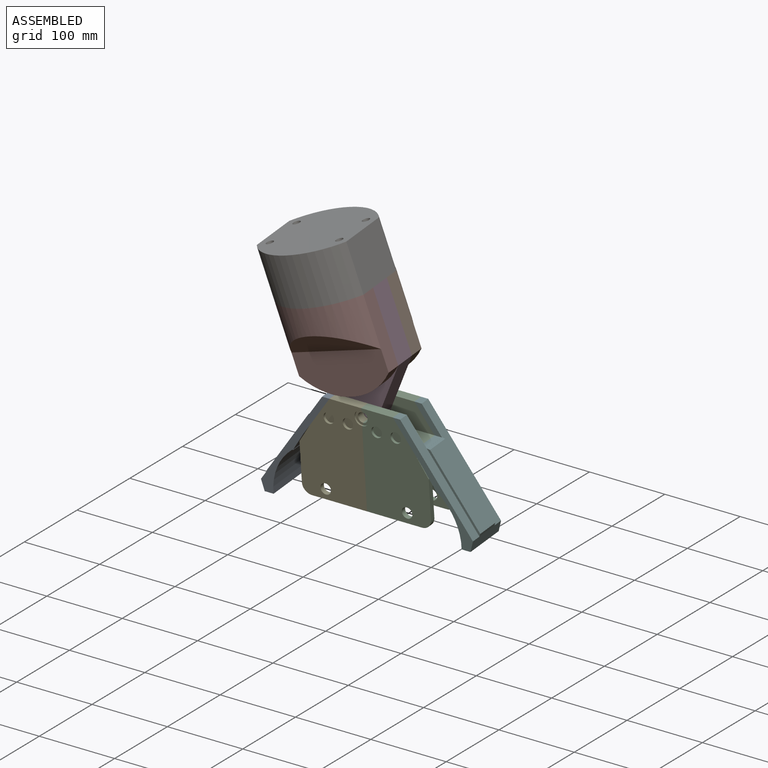
[diagram: assembled view]
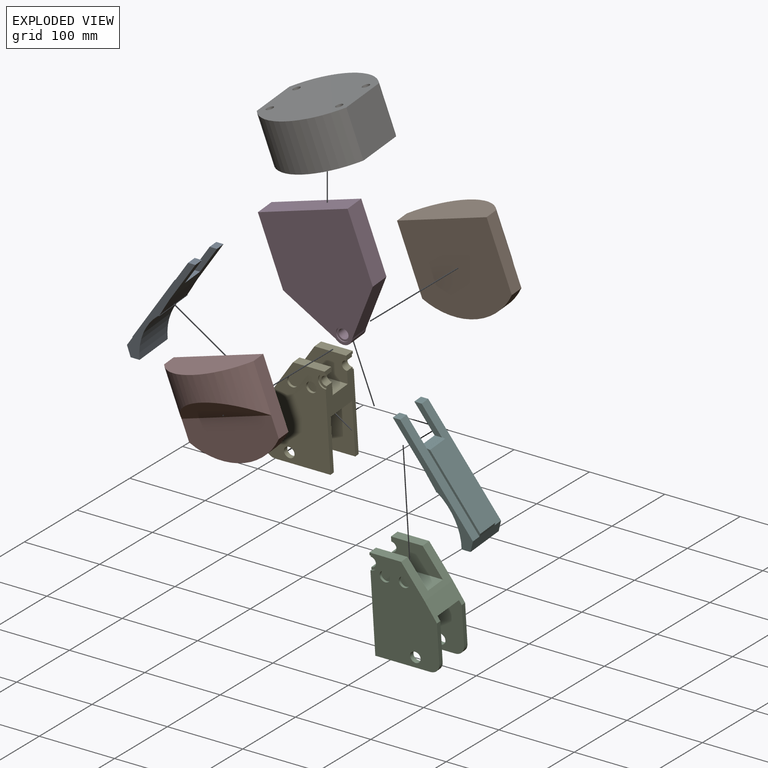
[diagram: exploded view]
GUIDED TOUR — MATED ASSEMBLY (Onshape document 93b1344b0edaf058a38d2f1a, AutoMate assembly 93b1344b0edaf058a38d2f1a_c62d3493fb06994a1e959979_1a160d0c319ed642daff932e_default)

This assembly has 8 components, labeled P0..P7 below (a component is one placed occurrence of a part; the same part can appear more than once), held together by 19 mates. A mate is a constraint between two components; its type names the relative motion it leaves free:
  CYLINDRICAL — leaves both rotation about and translation along the listed axis free,
  PLANAR — leaves sliding in the plane through the listed point (normal = the listed direction) and rotation about that normal free,
  SLIDER — leaves translation along the listed axis free.
Axis/direction vectors are unit vectors and 'through' points are millimeter coordinates, both in the assembly's world frame.

MATES
  1. PLANAR "Planar 11": P2 <-> P5, direction (0.000, -0.996, -0.087) through (231.27, 239.85, 90.16) mm
  2. PLANAR "Planar 17": P3 <-> P6, direction (0.954, -0.026, 0.297) through (219.45, 256.17, 195.93) mm
  3. PLANAR "Planar 5": P7 <-> P3, direction (0.954, -0.026, 0.297) through (224.94, 226.54, 175.72) mm
  4. PLANAR "Planar 12": P2 <-> P5, direction (0.000, -0.087, 0.996) through (210.24, 252.28, 91.25) mm
  5. PLANAR "Planar 7": P1 <-> P3, direction (0.000, -0.996, -0.087) through (161.71, 271.57, 169.05) mm
  6. PLANAR "Planar 2": P4 <-> P2, direction (0.000, -0.087, 0.996) through (189.22, 269.58, 57.39) mm
  7. PLANAR "Planar 13": P4 <-> P0, direction (-0.819, -0.050, 0.571) through (122.50, 255.35, 56.14) mm
  8. PLANAR "Planar 4": P3 <-> P7, direction (0.000, -0.996, -0.087) through (219.45, 243.22, 194.79) mm
  9. PLANAR "Planar 6": P7 <-> P3, direction (-0.299, -0.083, 0.951) through (144.86, 219.91, 218.61) mm
  10. PLANAR "Planar 1": P4 <-> P3, direction (0.000, 0.996, 0.087) through (160.69, 253.95, 72.15) mm
  11. CYLINDRICAL "Cylindrical 1": P4 <-> P3, axis (0.000, 0.996, 0.087) through (189.22, 242.95, 77.68) mm
  12. PLANAR "Planar 3": P4 <-> P2, direction (1.000, 0.000, 0.000) through (189.22, 271.77, 32.44) mm
  13. PLANAR "Planar 10": P2 <-> P5, direction (0.819, -0.050, 0.571) through (231.27, 239.85, 90.16) mm
  14. SLIDER "Slider 1": P4 <-> P2, axis (1.000, 0.000, 0.000) through (189.22, 239.85, 90.16) mm
  15. PLANAR "Planar 9": P3 <-> P1, direction (0.954, -0.026, 0.297) through (219.45, 256.17, 195.93) mm
  16. PLANAR "Planar 8": P3 <-> P1, direction (-0.299, -0.083, 0.951) through (144.76, 253.93, 221.56) mm
  17. PLANAR "Planar 14": P0 <-> P4, direction (0.000, -0.996, -0.087) through (91.94, 246.29, 16.50) mm
  18. PLANAR "Planar 15": P0 <-> P4, direction (0.000, -0.087, 0.996) through (142.31, 239.85, 90.16) mm
  19. PLANAR "Planar 16": P1 <-> P6, direction (-0.299, -0.083, 0.951) through (144.86, 287.94, 224.56) mm

ASSEMBLY ORDER
  1. P5 — the base component [order verified]
  2. P2 [order verified]
  3. P4 [order verified]
  4. P0 [order verified]
  5. P3 [order verified]
  6. P1 [order verified]
  7. P7 [order verified]
  8. P6 [order verified]
Order-tag legend:
  [order verified] — this step's position reverses a verified removal order: the component was checked to insert without passing through the ones already placed.

Of the 8 components, 2 carry the full construction recipe — the FeatureScript program that regenerates the part's solid from scratch; the rest are supplied as boundary geometry only.
Each toured component is shown spotlighted twice — in the assembled view, then in the exploded view, where a leader line traces a displaced component back to its assembled socket (saturated green if recipe-attached, orange if geometry-only; every other component desaturated gray) — followed by its recipe or geometry summary and the mates that hold it.
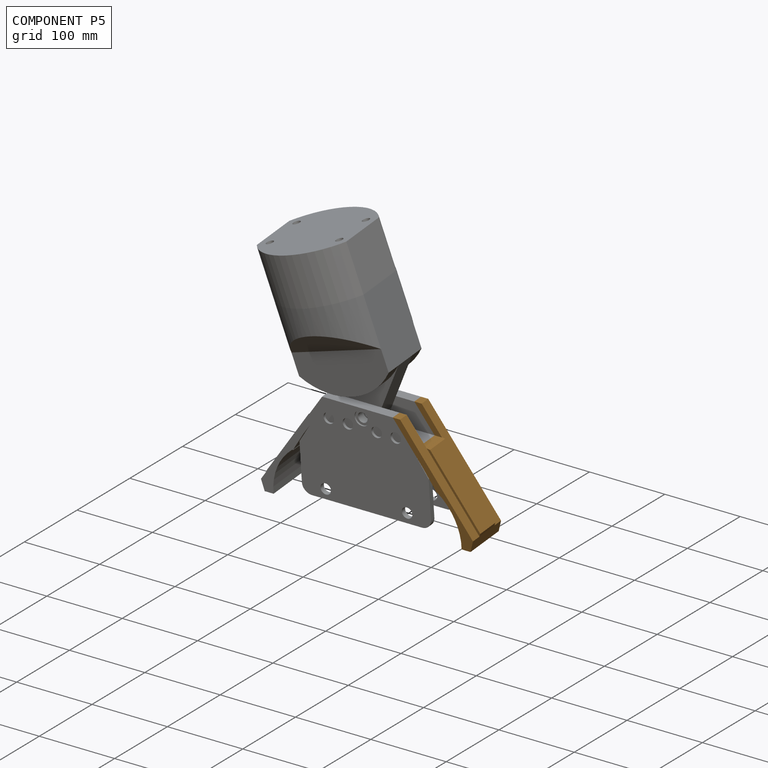
[diagram: component P5 — assembled]
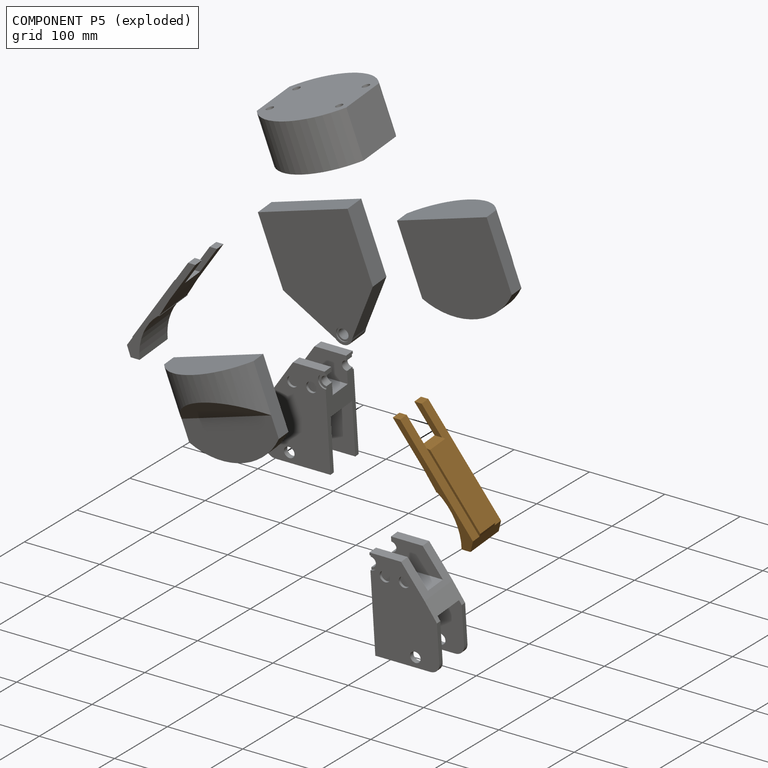
[diagram: component P5 — exploded]
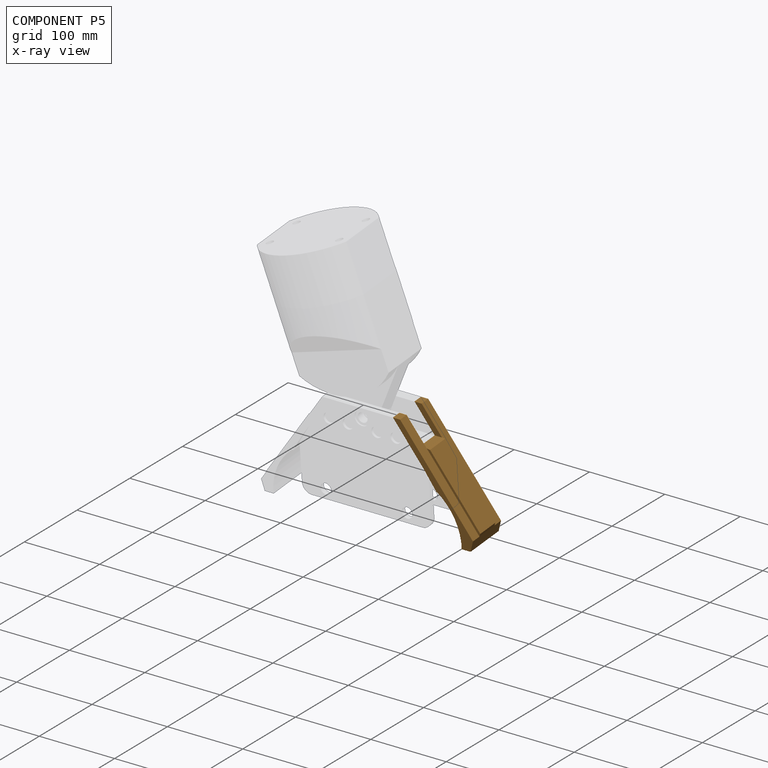
[diagram: component P5 — x-ray view]
COMPONENT P5 — geometry summary (no construction recipe available for this part):
  bounding box: 141.3 x 99.9 x 53.5 mm
  B-rep topology: 1 solid, 22 faces, 110 edges
  volume: 77191 mm^3 (10% of its bounding box)
  symmetry: mirror-symmetric across its y mid-plane
Held by: PLANAR mate "Planar 11" to P2; PLANAR mate "Planar 12" to P2; PLANAR mate "Planar 10" to P2.
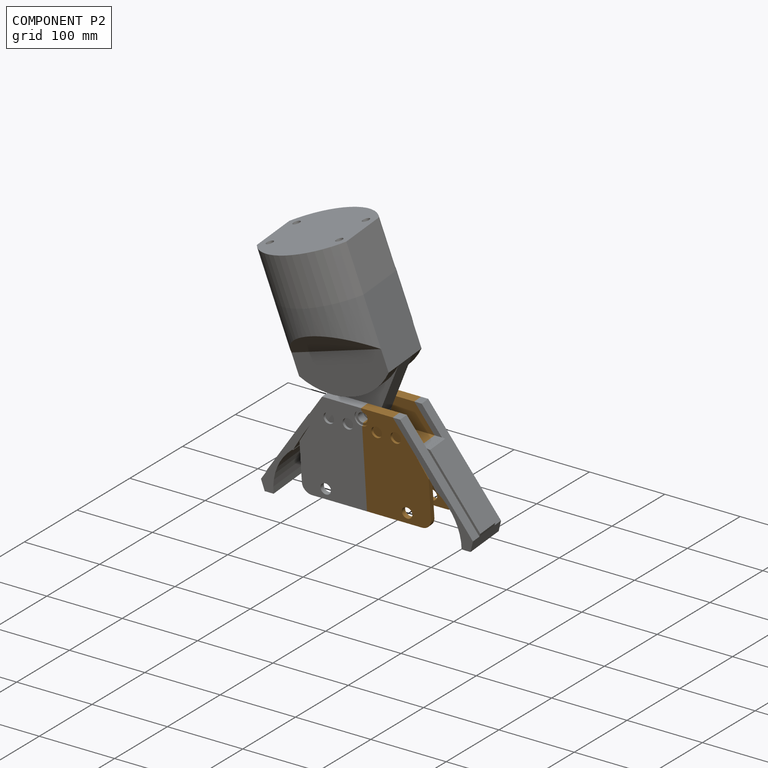
[diagram: component P2 — assembled]
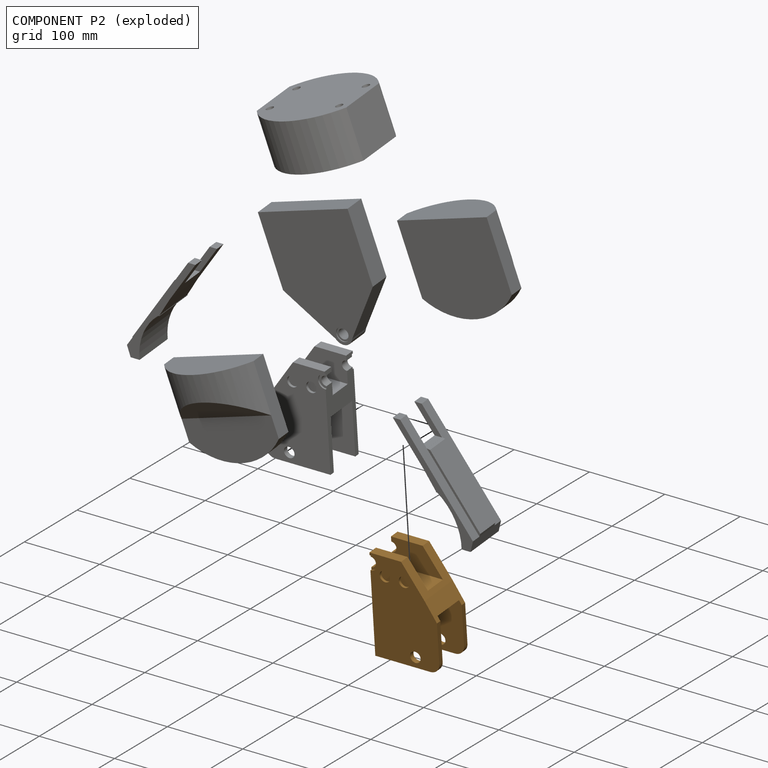
[diagram: component P2 — exploded]
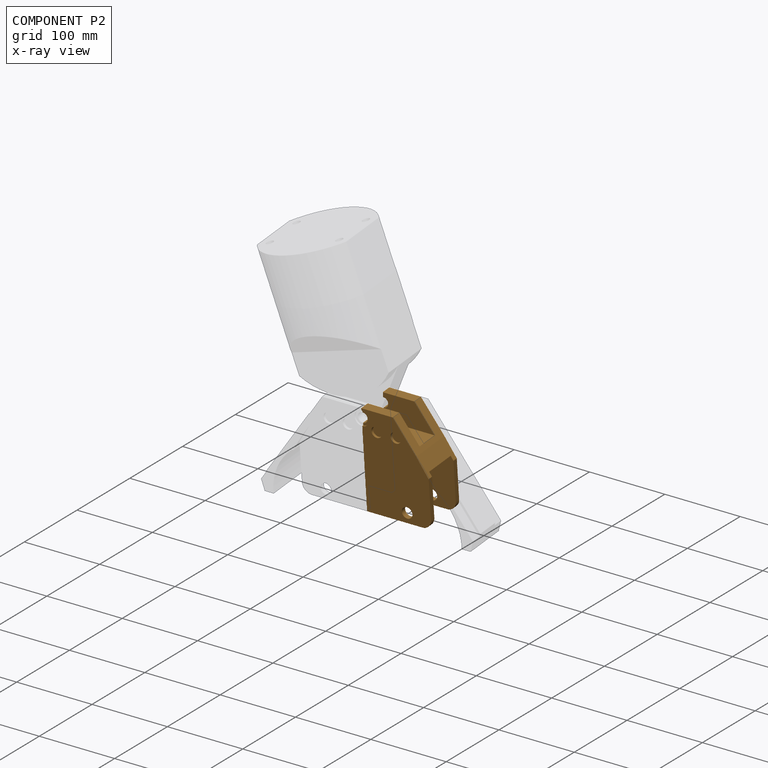
[diagram: component P2 — x-ray view]
COMPONENT P2 — geometry summary (no construction recipe available for this part):
  bounding box: 128.6 x 85.7 x 53.5 mm
  B-rep topology: 1 solid, 37 faces, 198 edges
  volume: 213178 mm^3 (36% of its bounding box)
  symmetry: mirror-symmetric across its y mid-plane
Held by: PLANAR mate "Planar 11" to P5; PLANAR mate "Planar 12" to P5; PLANAR mate "Planar 2" to P4; PLANAR mate "Planar 3" to P4; PLANAR mate "Planar 10" to P5; SLIDER mate "Slider 1" to P4.
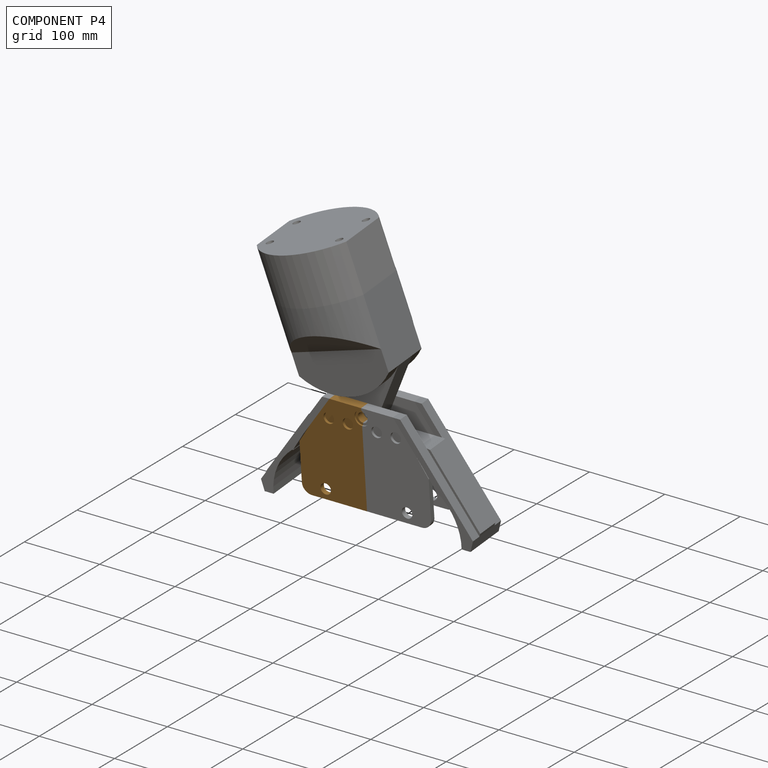
[diagram: component P4 — assembled]
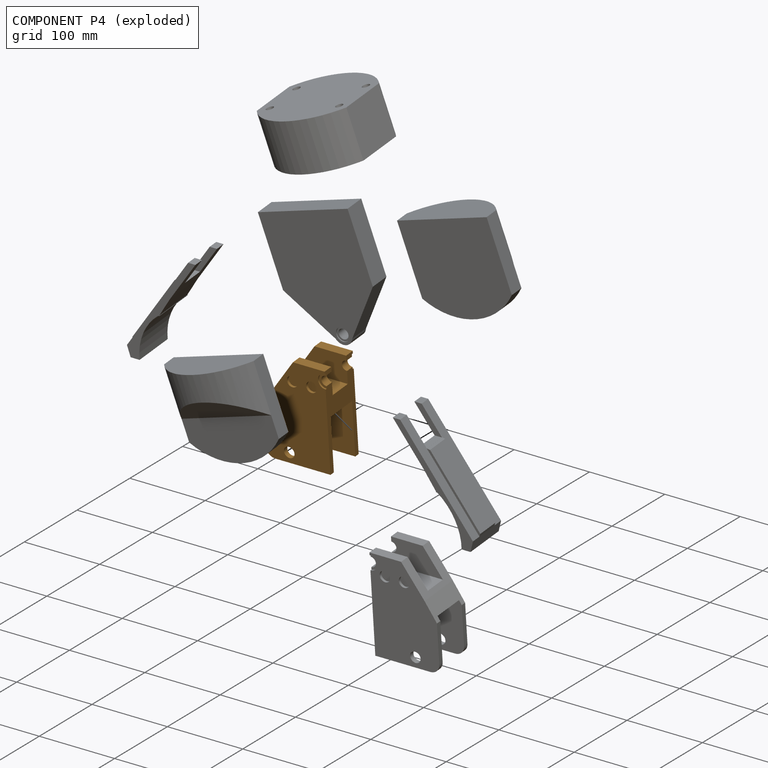
[diagram: component P4 — exploded]
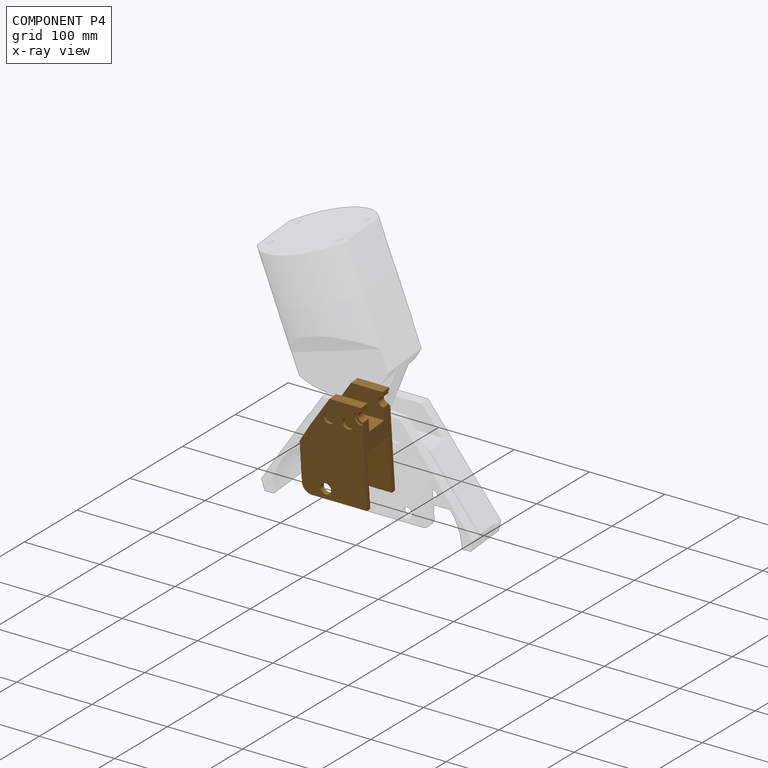
[diagram: component P4 — x-ray view]
COMPONENT P4 — geometry summary (no construction recipe available for this part):
  bounding box: 128.6 x 85.7 x 53.5 mm
  B-rep topology: 1 solid, 37 faces, 198 edges
  volume: 213178 mm^3 (36% of its bounding box)
  symmetry: mirror-symmetric across its y mid-plane
Held by: PLANAR mate "Planar 2" to P2; PLANAR mate "Planar 13" to P0; PLANAR mate "Planar 1" to P3; CYLINDRICAL mate "Cylindrical 1" to P3; PLANAR mate "Planar 3" to P2; SLIDER mate "Slider 1" to P2; PLANAR mate "Planar 14" to P0; PLANAR mate "Planar 15" to P0.
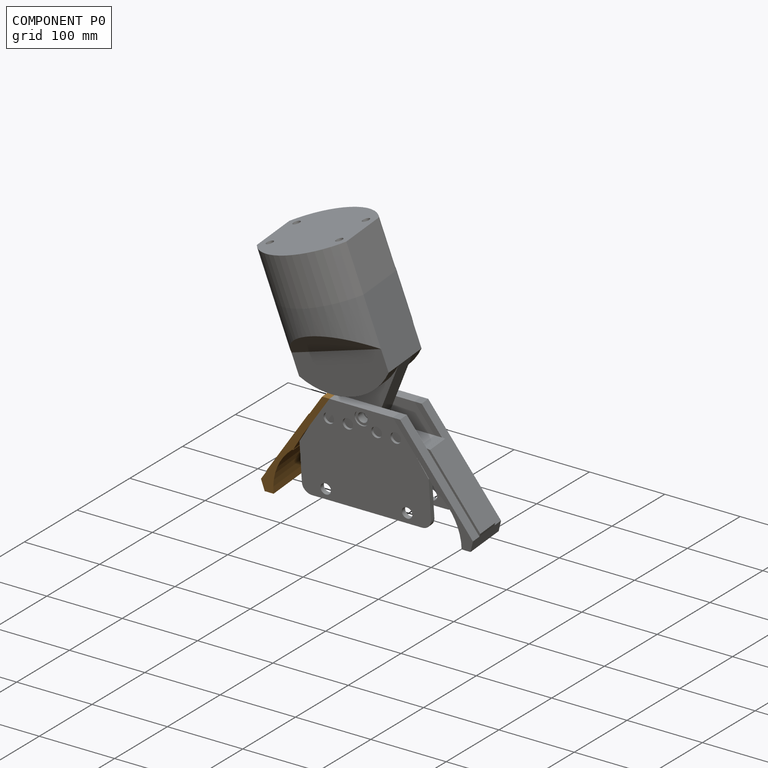
[diagram: component P0 — assembled]
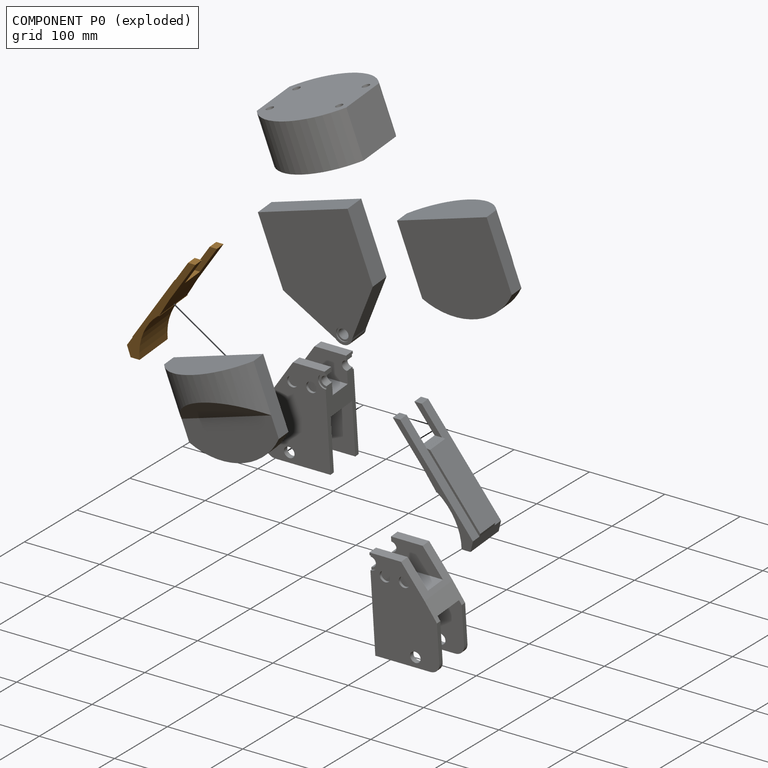
[diagram: component P0 — exploded]
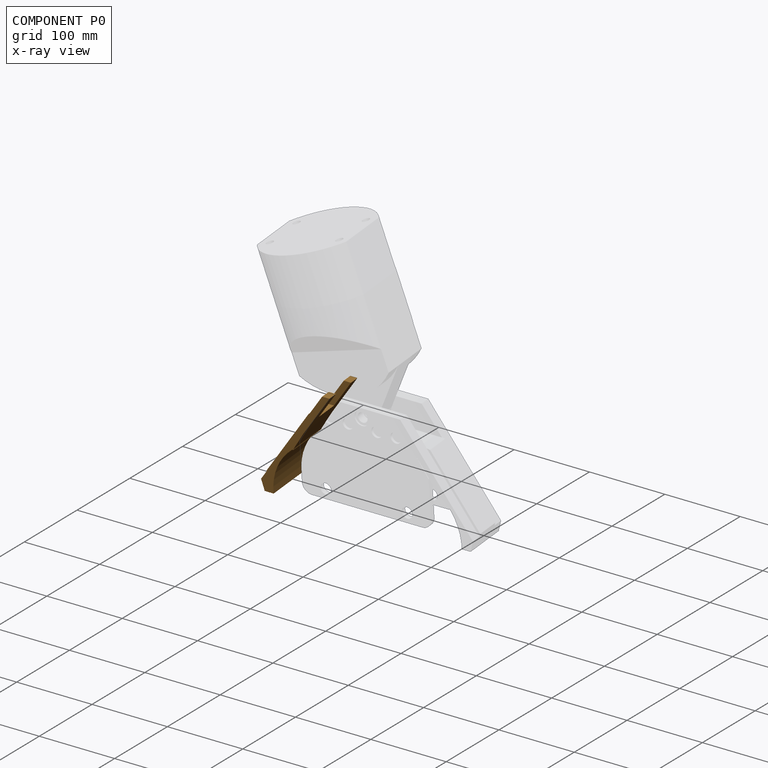
[diagram: component P0 — x-ray view]
COMPONENT P0 — geometry summary (no construction recipe available for this part):
  bounding box: 141.3 x 99.9 x 53.5 mm
  B-rep topology: 1 solid, 22 faces, 110 edges
  volume: 77191 mm^3 (10% of its bounding box)
  symmetry: mirror-symmetric across its y mid-plane
Held by: PLANAR mate "Planar 13" to P4; PLANAR mate "Planar 14" to P4; PLANAR mate "Planar 15" to P4.
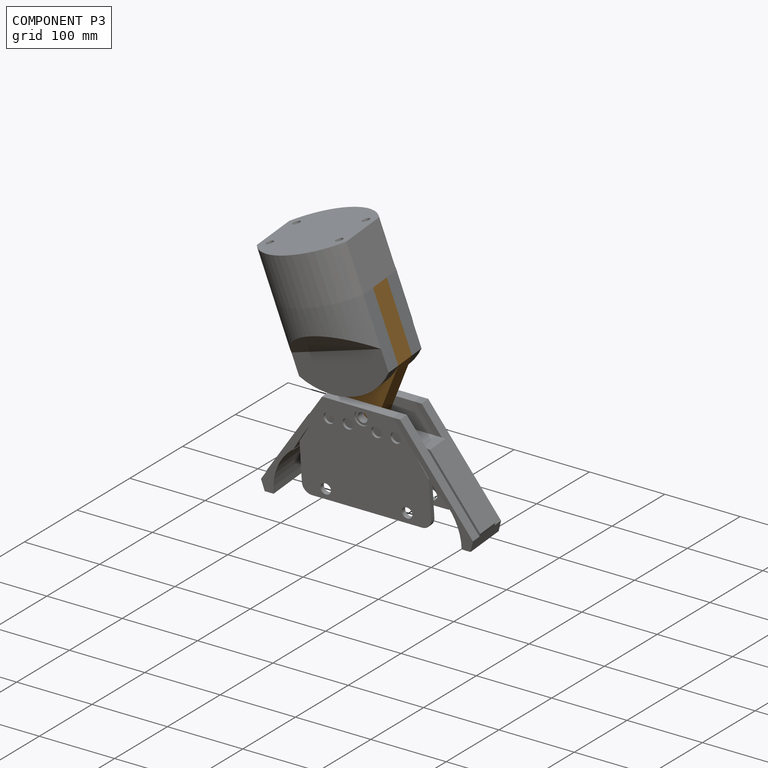
[diagram: component P3 — assembled]
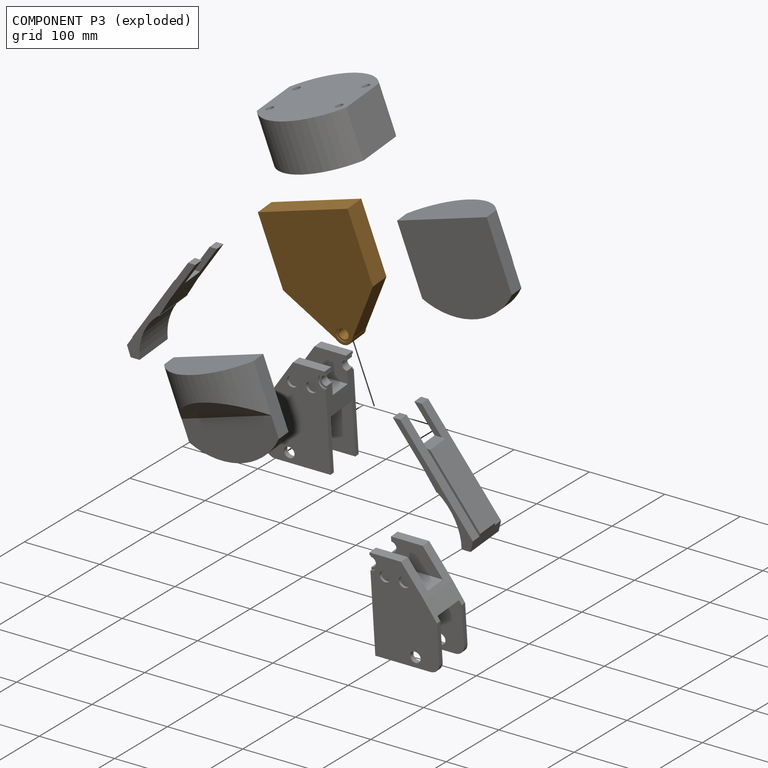
[diagram: component P3 — exploded]
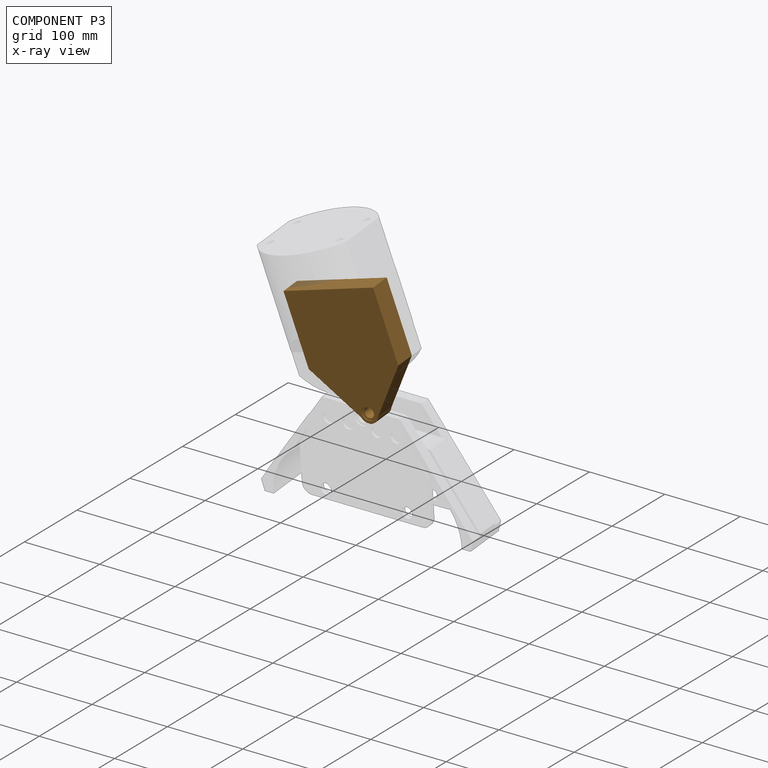
[diagram: component P3 — x-ray view]
COMPONENT P3 — geometry summary (no construction recipe available for this part):
  bounding box: 161.8 x 127.2 x 26.0 mm
  B-rep topology: 1 solid, 13 faces, 58 edges
  volume: 427445 mm^3 (80% of its bounding box)
  symmetry: 2-fold rotationally symmetric about the y axis; mirror-symmetric across its x mid-plane, z mid-plane
Held by: PLANAR mate "Planar 17" to P6; PLANAR mate "Planar 5" to P7; PLANAR mate "Planar 7" to P1; PLANAR mate "Planar 4" to P7; PLANAR mate "Planar 6" to P7; PLANAR mate "Planar 1" to P4; CYLINDRICAL mate "Cylindrical 1" to P4; PLANAR mate "Planar 9" to P1; PLANAR mate "Planar 8" to P1.
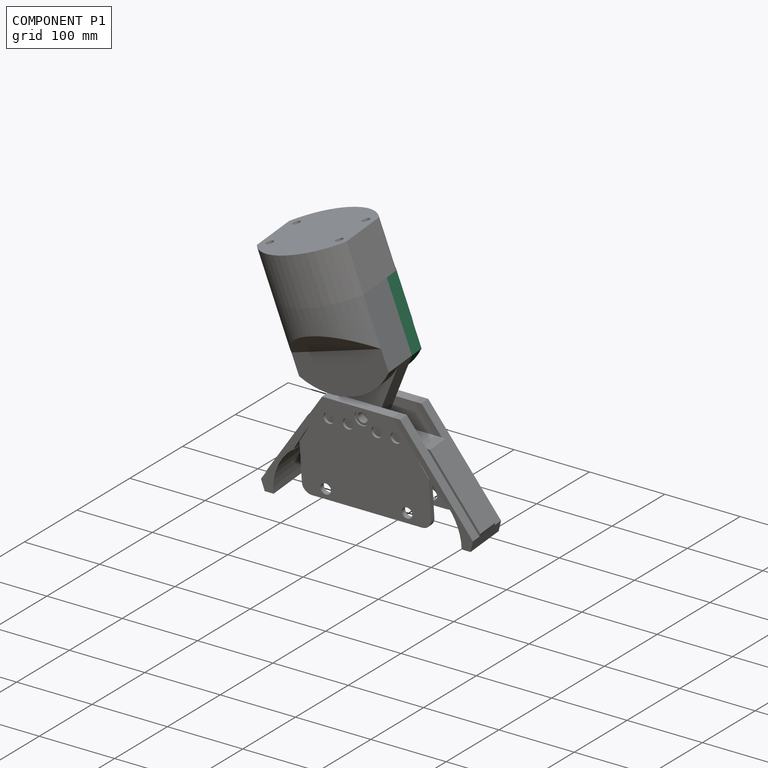
[diagram: component P1 — assembled]
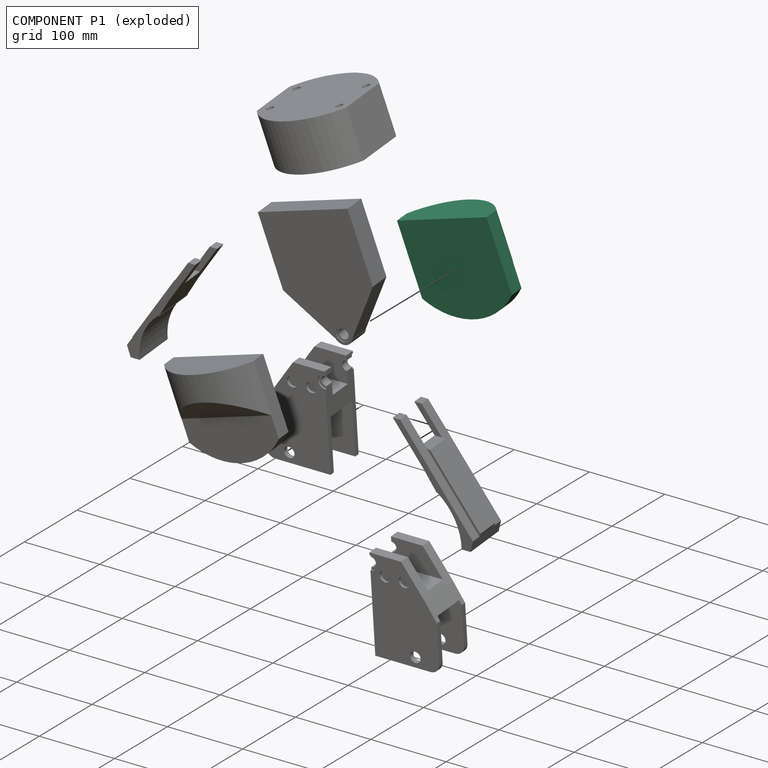
[diagram: component P1 — exploded]
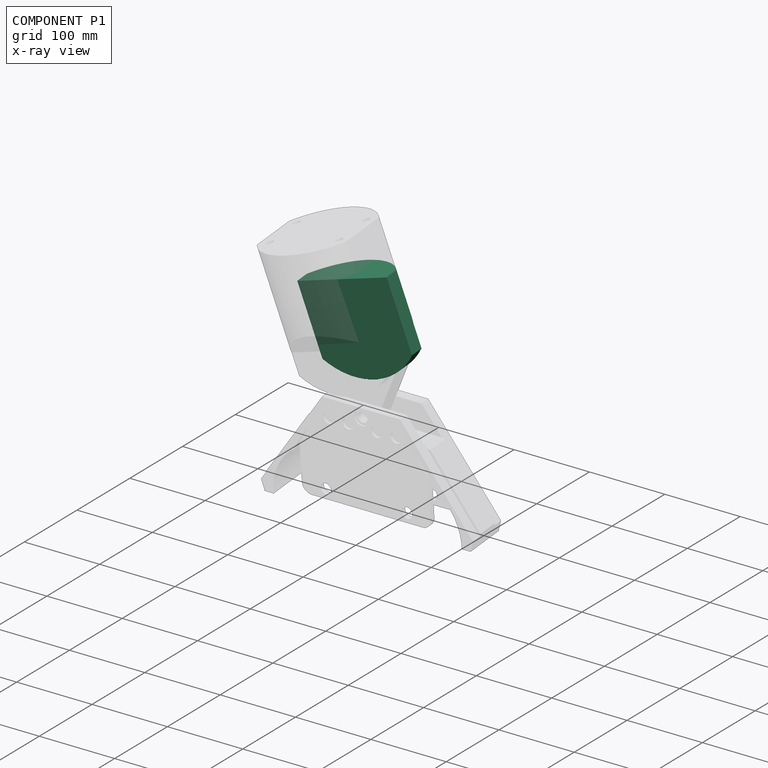
[diagram: component P1 — x-ray view]
COMPONENT P1 — recipe-attached (CADFS 00116820, mesh-verified: the recipe's output STEP matches this component's geometry to below the mesh-comparison resolution (tessellation chordal tolerance ~0.273 mm)).
Held by: PLANAR mate "Planar 7" to P3; PLANAR mate "Planar 9" to P3; PLANAR mate "Planar 8" to P3; PLANAR mate "Planar 16" to P6.
Construction recipe (FeatureScript — the CAD program that rebuilds this solid; sketch coordinates are in the units given by the * unit suffixes, e.g. mm):

FeatureScript 2221;
import(path : "onshape/std/geometry.fs", version : "2221.0");
import(path : "onshape/std/common.fs", version : "2221.0");
const mm = millimeter;
const VERTEX = EntityType.VERTEX;
const EDGE = EntityType.EDGE;
const FACE = EntityType.FACE;
const BODY = EntityType.BODY;
function v(x, y){return vector(x, y);}
function OD(order){return orderDisambiguation(order);}
function OSD(set){return originalSetDisambiguation(set);}
function TD(topology){return topologyDisambiguation(topology);}
function TDD(query){return trueDependencyDisambiguation(query);}
function sQuery(a, b, c) {return sketchEntityQuery(a, b, c);}

annotation { "Feature Type Name" : "Feature", "Feature Type Description" : "" }
export const myFeature = defineFeature(function(context is Context, id is Id, definition is map)
    precondition{}
    {
        {
            var Q0;
            Q0=qCreatedBy(makeId("Front.planeOp"),FACE);
            var sketch = newSketch(context, id + "F0", { "sketchPlane" : qUnion([Q0])});
            skLineSegment(sketch, "E0.bottom", {"start": v(-63.5, 31) * mm, "end": v(63.5, 31) * mm});
            skLineSegment(sketch, "E0.top", {"start": v(-63.5, -31) * mm, "end": v(63.5, -31) * mm});
            skLineSegment(sketch, "E0.left", {"start": v(-63.5, 31) * mm, "end": v(-63.5, -31) * mm});
            skLineSegment(sketch, "E0.right", {"start": v(63.5, 31) * mm, "end": v(63.5, -31) * mm});
            skPoint(sketch, "E0.middle", {"position": v(0, 0) * mm});
            skLineSegment(sketch, "E1", {"start": v(0, 0) * mm, "end": v(0, -62.5) * mm});
            skLineSegment(sketch, "E2", {"start": v(0, -62.5) * mm, "end": v(0, 0) * mm});
            skLineSegment(sketch, "E3", {"start": v(0, 0) * mm, "end": v(0, 62.5) * mm});
            skLineSegment(sketch, "E4", {"start": v(0, 62.5) * mm, "end": v(0, 0) * mm});
            skArc(sketch, "E5", {"start": v(63.5, 31) * mm, "mid": v(0, 62.5) * mm, "end": v(-63.5, 31) * mm});
            skArc(sketch, "E6", {"start": v(-63.5, -31) * mm, "mid": v(0, -62.5) * mm, "end": v(63.5, -31) * mm});
            skSolve(sketch);
        }
        {
            var Q0;
            Q0=qSketchRegion(id+"F0",true);
            extrude(context, id + "F1", {"entities" : qUnion([Q0]), "depth" : 104.5 * mm});
        }
        {
            var Q0;
            Q0=makeQuery(id+"F1.opExtrude","SWEPT_FACE",FACE,{"disambiguationData":[OSD([sQuery(id+"F0.wireOp",EDGE,"E0.right")])]});
            var sketch = newSketch(context, id + "F2", { "sketchPlane" : qUnion([Q0])});
            skLineSegment(sketch, "E7.bottom", {"start": v(-104.5, 31) * mm, "end": v(-62.5, 31) * mm});
            skLineSegment(sketch, "E7.top", {"start": v(-104.5, -31) * mm, "end": v(-62.5, -31) * mm});
            skLineSegment(sketch, "E7.left", {"start": v(-104.5, 31) * mm, "end": v(-104.5, -31) * mm});
            skLineSegment(sketch, "E7.right", {"start": v(-62.5, 31) * mm, "end": v(-62.5, -31) * mm});
            skLineSegment(sketch, "E8", {"start": v(-62.5, 31) * mm, "end": v(-62.5, 64.33) * mm});
            skLineSegment(sketch, "E9", {"start": v(-62.5, 64.33) * mm, "end": v(-104.5, 31) * mm});
            skLineSegment(sketch, "E10", {"start": v(-62.5, -31) * mm, "end": v(-62.5, -65.1) * mm});
            skLineSegment(sketch, "E11", {"start": v(-62.5, -65.1) * mm, "end": v(-104.5, -31) * mm});
            skLineSegment(sketch, "E12", {"start": v(-104.5, -31) * mm, "end": v(-104.5, -67.31) * mm});
            skLineSegment(sketch, "E13", {"start": v(-104.5, -67.31) * mm, "end": v(-62.5, -65.1) * mm});
            skLineSegment(sketch, "E14", {"start": v(-104.5, 31) * mm, "end": v(-104.5, 72.84) * mm});
            skLineSegment(sketch, "E15", {"start": v(-104.5, 72.84) * mm, "end": v(-62.5, 64.33) * mm});
            skSolve(sketch);
        }
        {
            var Q0;
            Q0=makeQuery(id+"F2.imprint","IMPRINT",FACE,{"disambiguationData":[TD([[makeQuery(id+"F2.imprint","IMPRINT",EDGE,{"derivedFrom":sQuery(id+"F2.wireOp",EDGE,"E9")}),-1.0]])]});
            var Q1;
            Q1=makeQuery(id+"F2.imprint","IMPRINT",FACE,{"disambiguationData":[TD([[makeQuery(id+"F2.imprint","IMPRINT",EDGE,{"derivedFrom":sQuery(id+"F2.wireOp",EDGE,"E11")}),1.0]])]});
            extrude(context, id + "F3", {"entities" : qUnion([Q0, Q1]), "operationType" : NewBodyOperationType.REMOVE, "endBound" : BoundingType.THROUGH_ALL, "oppositeDirection" : true, "depth" : 25.4 * mm});
        }
        {
            var Q0;
            Q0=makeQuery(id+"F1.opExtrude","CAP_FACE",FACE,{"disambiguationData":[OSD([sQuery(id+"F0.wireOp",EDGE,"E0.left"),sQuery(id+"F0.wireOp",EDGE,"E0.right"),sQuery(id+"F0.wireOp",EDGE,"E5"),sQuery(id+"F0.wireOp",EDGE,"E6")])],"isStart":false});
            var sketch = newSketch(context, id + "F4", { "sketchPlane" : qUnion([Q0])});
            skLineSegment(sketch, "E16.bottom", {"start": v(-63.5, 31) * mm, "end": v(63.5, 31) * mm});
            skLineSegment(sketch, "E16.top", {"start": v(-63.5, -31) * mm, "end": v(63.5, -31) * mm});
            skLineSegment(sketch, "E16.left", {"start": v(-63.5, 31) * mm, "end": v(-63.5, -31) * mm});
            skLineSegment(sketch, "E16.right", {"start": v(63.5, 31) * mm, "end": v(63.5, -31) * mm});
            skSolve(sketch);
        }
        {
            var Q0;
            Q0=qSketchRegion(id+"F4",true);
            extrude(context, id + "F5", {"entities" : qUnion([Q0]), "operationType" : NewBodyOperationType.ADD, "depth" : 27 * mm});
        }
        {
            var Q0;
            Q0=makeQuery(id+"F5.opExtrude","SWEPT_FACE",FACE,{"disambiguationData":[OSD([sQuery(id+"F4.wireOp",EDGE,"E16.top")])]});
            var sketch = newSketch(context, id + "F6", { "sketchPlane" : qUnion([Q0])});
            skPoint(sketch, "E17", {"position": v(0, 131.5) * mm});
            skArc(sketch, "E18", {"start": v(63.5, 104.5) * mm, "mid": v(0, 131.5) * mm, "end": v(-63.5, 104.5) * mm});
            skLineSegment(sketch, "E19.bottom", {"start": v(-63.5, 131.5) * mm, "end": v(63.5, 131.5) * mm});
            skLineSegment(sketch, "E19.top", {"start": v(-63.5, 104.5) * mm, "end": v(63.5, 104.5) * mm});
            skLineSegment(sketch, "E19.left", {"start": v(-63.5, 131.5) * mm, "end": v(-63.5, 104.5) * mm});
            skLineSegment(sketch, "E19.right", {"start": v(63.5, 131.5) * mm, "end": v(63.5, 104.5) * mm});
            skSolve(sketch);
        }
        {
            var Q0;
            {var subQ0=sQuery(id+"F6.wireOp",EDGE,"E19.left");Q0=makeQuery(id+"F6.imprint","IMPRINT",FACE,{"disambiguationData":[TD([[makeQuery(id+"F6.imprint","IMPRINT",EDGE,{"derivedFrom":subQ0}),1.0]])]});}
            var Q1;
            {var subQ0=sQuery(id+"F6.wireOp",EDGE,"E19.right");Q1=makeQuery(id+"F6.imprint","IMPRINT",FACE,{"disambiguationData":[TD([[makeQuery(id+"F6.imprint","IMPRINT",EDGE,{"derivedFrom":subQ0}),-1.0]])]});}
            extrude(context, id + "F7", {"entities" : qUnion([Q0, Q1]), "operationType" : NewBodyOperationType.REMOVE, "endBound" : BoundingType.THROUGH_ALL, "oppositeDirection" : true, "depth" : 25.4 * mm});
        }
        {
            var Q0;
            Q0=makeQuery(id+"F1.opExtrude","CAP_FACE",FACE,{"disambiguationData":[OSD([sQuery(id+"F0.wireOp",EDGE,"E0.left"),sQuery(id+"F0.wireOp",EDGE,"E0.right"),sQuery(id+"F0.wireOp",EDGE,"E5"),sQuery(id+"F0.wireOp",EDGE,"E6")])],"isStart":true});
            var sketch = newSketch(context, id + "F8", { "sketchPlane" : qUnion([Q0])});
            skLineSegment(sketch, "E20.bottom", {"start": v(149.23, -135.48) * mm, "end": v(-88.37, -135.48) * mm});
            skLineSegment(sketch, "E20.top", {"start": v(149.23, 77.12) * mm, "end": v(-88.37, 77.12) * mm});
            skLineSegment(sketch, "E20.left", {"start": v(149.23, -135.48) * mm, "end": v(149.23, 77.12) * mm});
            skLineSegment(sketch, "E20.right", {"start": v(-88.37, -135.48) * mm, "end": v(-88.37, 77.12) * mm});
            skSolve(sketch);
        }
        {
            var Q0;
            Q0 = qSketchRegion(id + "F8", true);
            extrude(context, id + "F9", {"entities" : qUnion([Q0]), "operationType" : NewBodyOperationType.REMOVE, "oppositeDirection" : true, "depth" : 64.76 * mm});
        }
        {
            var Q0;
            Q0=makeQuery(id+"F5.boolean.opBoolean","MERGE",FACE,{"derivedFrom":[makeQuery(id+"F1.opExtrude","SWEPT_FACE",FACE,{"disambiguationData":[OSD([sQuery(id+"F0.wireOp",EDGE,"E0.right")])]}),makeQuery(id+"F5.opExtrude","SWEPT_FACE",FACE,{"disambiguationData":[OSD([sQuery(id+"F4.wireOp",EDGE,"E16.right")])]})]});
            var sketch = newSketch(context, id + "F10", { "sketchPlane" : qUnion([Q0])});
            skPoint(sketch, "E21", {"position": v(-64.76, 0) * mm});
            skPoint(sketch, "E22", {"position": v(-104.5, 0) * mm});
            skLineSegment(sketch, "E23", {"start": v(-64.76, 0) * mm, "end": v(-64.76, 76.2) * mm});
            skLineSegment(sketch, "E24", {"start": v(-64.76, 76.2) * mm, "end": v(-64.76, 0) * mm});
            skLineSegment(sketch, "E25", {"start": v(-64.76, 0) * mm, "end": v(-64.76, -12.73) * mm});
            skLineSegment(sketch, "E26", {"start": v(-64.76, -12.73) * mm, "end": v(-64.76, 0) * mm});
            skLineSegment(sketch, "E27.bottom", {"start": v(-64.76, -12.73) * mm, "end": v(-148.14, -12.73) * mm});
            skLineSegment(sketch, "E27.top", {"start": v(-64.76, 76.2) * mm, "end": v(-148.14, 76.2) * mm});
            skLineSegment(sketch, "E27.left", {"start": v(-64.76, -12.73) * mm, "end": v(-64.76, 76.2) * mm});
            skLineSegment(sketch, "E27.right", {"start": v(-148.14, -12.73) * mm, "end": v(-148.14, 76.2) * mm});
            skSolve(sketch);
        }
        {
            var Q0;
            Q0 = qSketchRegion(id + "F10", true);
            extrude(context, id + "F11", {"entities" : qUnion([Q0]), "operationType" : NewBodyOperationType.REMOVE, "endBound" : BoundingType.THROUGH_ALL, "oppositeDirection" : true, "depth" : 25.4 * mm});
        }
        {
            var Q0;
            Q0=makeQuery(id+"F9.boolean.opBoolean","COPY",FACE,{"derivedFrom":makeQuery(id+"F9.opExtrude","CAP_FACE",FACE,{"disambiguationData":[OSD([sQuery(id+"F8.wireOp",EDGE,"E20.bottom"),sQuery(id+"F8.wireOp",EDGE,"E20.top"),sQuery(id+"F8.wireOp",EDGE,"E20.left"),sQuery(id+"F8.wireOp",EDGE,"E20.right")])],"isStart":false})});
            extrude(context, id + "F12", {"entities" : qUnion([Q0]), "operationType" : NewBodyOperationType.ADD, "depth" : 25.4 * mm});
        }
        {
            var Q0;
            Q0=makeQuery(id+"F12.opExtrude","CAP_FACE",FACE,{"disambiguationData":[OSD([sQuery(id+"F8.wireOp",EDGE,"E20.bottom"),sQuery(id+"F8.wireOp",EDGE,"E20.top"),sQuery(id+"F8.wireOp",EDGE,"E20.left"),sQuery(id+"F8.wireOp",EDGE,"E20.right")])],"isStart":false});
            var sketch = newSketch(context, id + "F13", { "sketchPlane" : qUnion([Q0])});
            skLineSegment(sketch, "E28.bottom", {"start": v(63.5, -31) * mm, "end": v(-63.5, -31) * mm});
            skLineSegment(sketch, "E28.top", {"start": v(63.5, -12.73) * mm, "end": v(-63.5, -12.73) * mm});
            skLineSegment(sketch, "E28.left", {"start": v(63.5, -31) * mm, "end": v(63.5, -12.73) * mm});
            skLineSegment(sketch, "E28.right", {"start": v(-63.5, -31) * mm, "end": v(-63.5, -12.73) * mm});
            skPoint(sketch, "E29", {"position": v(0, -62.5) * mm});
            skArc(sketch, "E30", {"start": v(-63.5, -31) * mm, "mid": v(0, -62.5) * mm, "end": v(63.5, -31) * mm});
            skSolve(sketch);
        }
        {
            var Q0;
            Q0 = qSketchRegion(id + "F13", true);
            extrude(context, id + "F14", {"entities" : qUnion([Q0]), "operationType" : NewBodyOperationType.ADD, "depth" : 28.57 * mm});
        }
        {
            var Q0;
            {var subQ0=sQuery(id+"F4.wireOp",EDGE,"E16.left");var subQ1=sQuery(id+"F0.wireOp",EDGE,"E0.left");Q0=makeQuery(id+"F14.boolean.opBoolean","MERGE",FACE,{"derivedFrom":[makeQuery(id+"F12.boolean.opBoolean","MERGE",FACE,{"derivedFrom":[makeQuery(id+"F5.boolean.opBoolean","MERGE",FACE,{"derivedFrom":[makeQuery(id+"F1.opExtrude","SWEPT_FACE",FACE,{"disambiguationData":[OSD([subQ1])]}),makeQuery(id+"F5.opExtrude","SWEPT_FACE",FACE,{"disambiguationData":[OSD([subQ0])]})]}),makeQuery(id+"F12.opExtrude","SWEPT_FACE",FACE,{"disambiguationData":[OSD([subQ1,subQ0,sQuery(id+"F8.wireOp",EDGE,"E20.bottom"),sQuery(id+"F8.wireOp",EDGE,"E20.top"),sQuery(id+"F8.wireOp",EDGE,"E20.left"),sQuery(id+"F8.wireOp",EDGE,"E20.right")])]})]}),makeQuery(id+"F14.opExtrude","SWEPT_FACE",FACE,{"disambiguationData":[OSD([sQuery(id+"F13.wireOp",EDGE,"E28.left")])]})]});}
            var sketch = newSketch(context, id + "F15", { "sketchPlane" : qUnion([Q0])});
            skLineSegment(sketch, "E31", {"start": v(104.5, -31) * mm, "end": v(76.03, -31) * mm});
            skLineSegment(sketch, "E32", {"start": v(76.03, -31) * mm, "end": v(104.5, -31) * mm});
            skLineSegment(sketch, "E33", {"start": v(76.03, -31) * mm, "end": v(42.23, -64.2) * mm});
            skLineSegment(sketch, "E34", {"start": v(42.23, -64.2) * mm, "end": v(104.03, -67.29) * mm});
            skLineSegment(sketch, "E35", {"start": v(104.03, -67.29) * mm, "end": v(104.5, -31) * mm});
            skSolve(sketch);
        }
        {
            var Q0;
            Q0 = qSketchRegion(id + "F15", true);
            extrude(context, id + "F16", {"entities" : qUnion([Q0]), "operationType" : NewBodyOperationType.REMOVE, "endBound" : BoundingType.THROUGH_ALL, "oppositeDirection" : true, "depth" : 25.4 * mm});
        }
    });
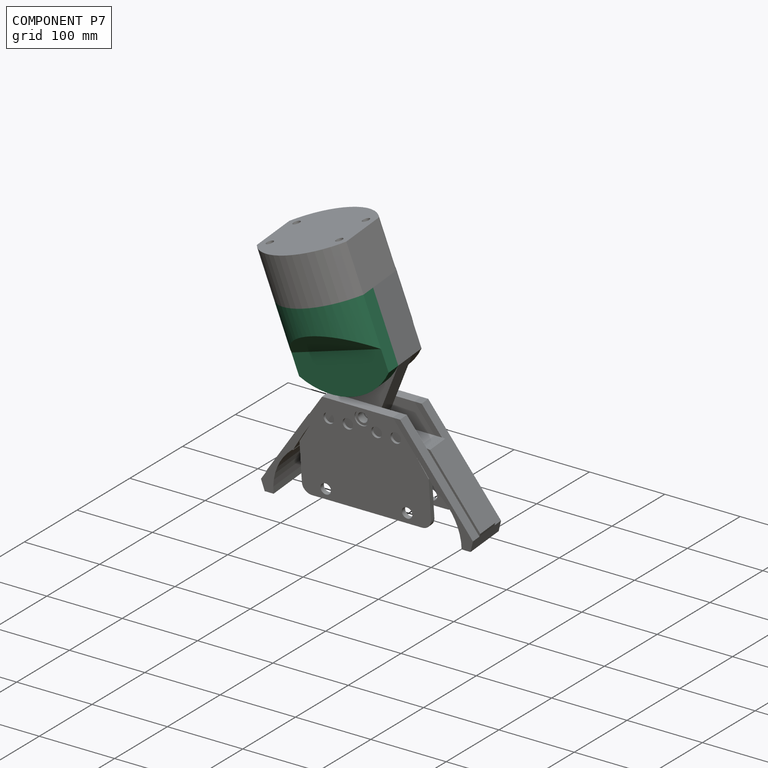
[diagram: component P7 — assembled]
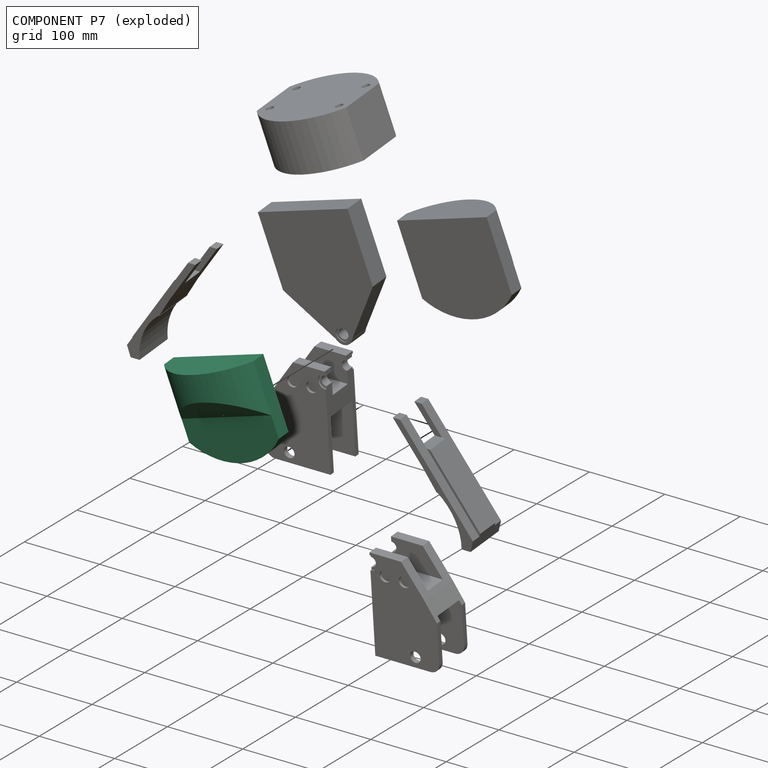
[diagram: component P7 — exploded]
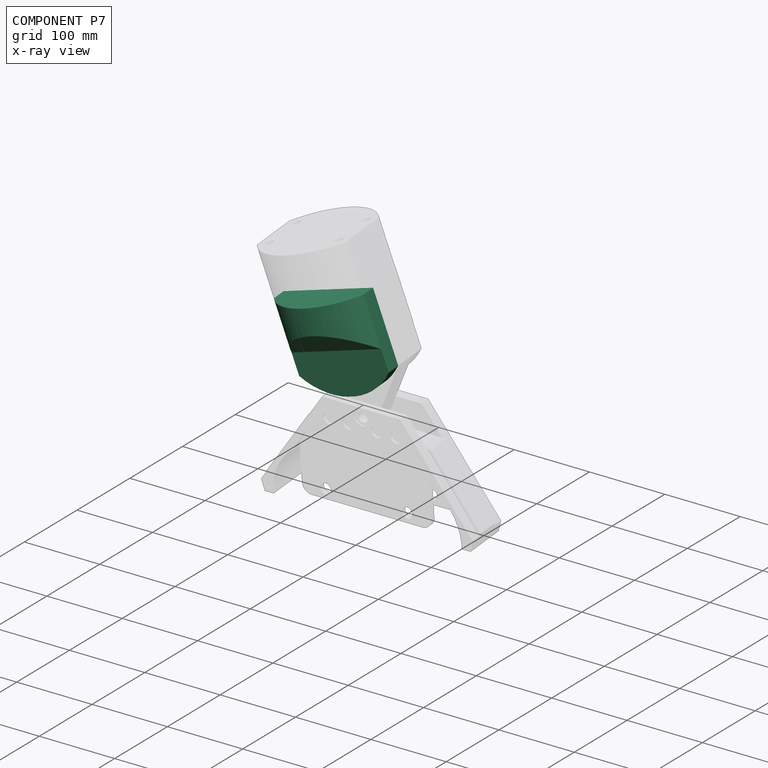
[diagram: component P7 — x-ray view]
COMPONENT P7 — same part as P1 (CADFS 00116820); its construction recipe is shown at P1.
Held by: PLANAR mate "Planar 5" to P3; PLANAR mate "Planar 4" to P3; PLANAR mate "Planar 6" to P3.
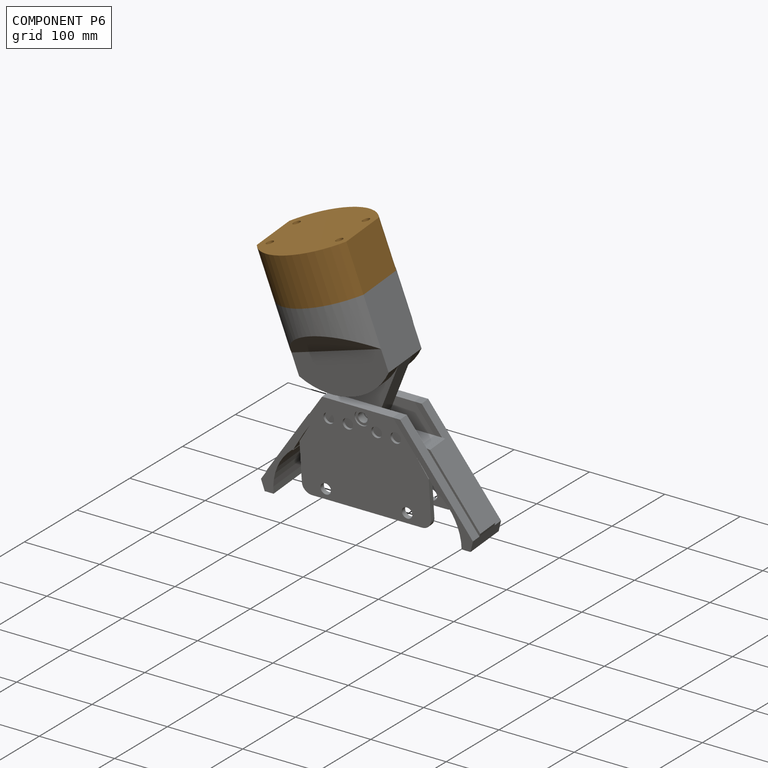
[diagram: component P6 — assembled]
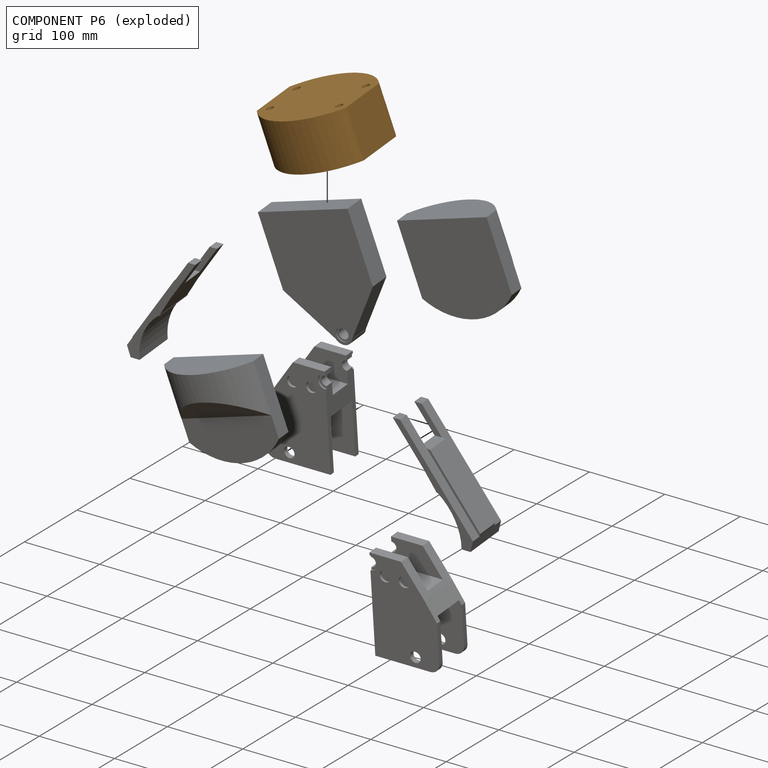
[diagram: component P6 — exploded]
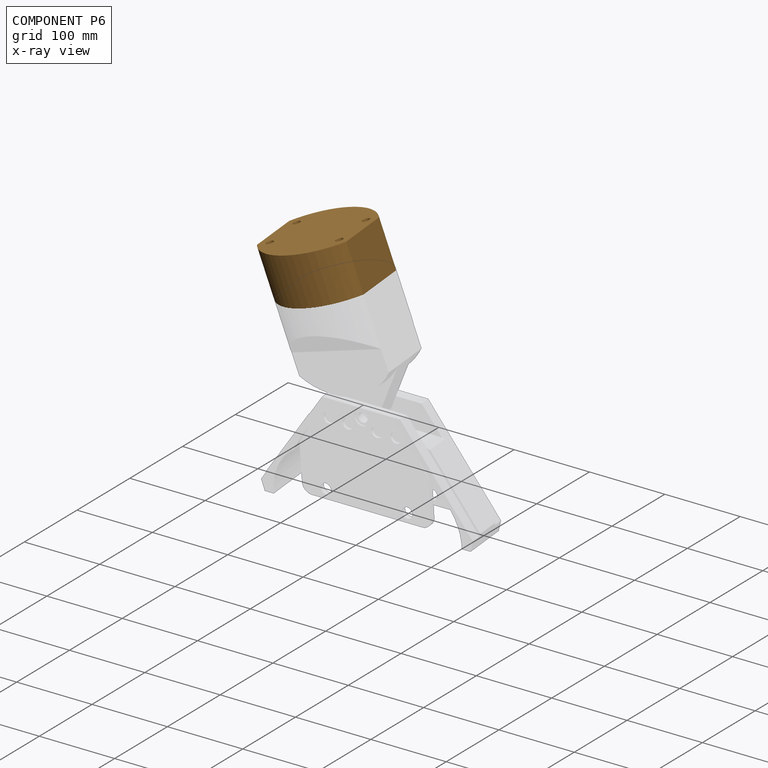
[diagram: component P6 — x-ray view]
COMPONENT P6 — geometry summary (no construction recipe available for this part):
  bounding box: 127.0 x 125.0 x 63.8 mm
  B-rep topology: 1 solid, 18 faces, 72 edges
  volume: 795176 mm^3 (78% of its bounding box)
  symmetry: 2-fold rotationally symmetric about the y axis; mirror-symmetric across its x mid-plane, z mid-plane
Held by: PLANAR mate "Planar 17" to P3; PLANAR mate "Planar 16" to P1.
PROVENANCE & LICENSES
Assembly (occurrences, transforms, mates, per-part STEP geometry): AutoMate dataset, Zenodo record 7776208, CC0.
Construction recipes: CADFS (HuggingFace VladPyatov/CADFS, CC-BY-4.0, layered over the ABC dataset), FeatureScript reconstruction programs keyed by ABC model id.
Join: ABC meta listings map ABC model id -> Onshape documentId; within a shared document, parts are matched by geometric signature (bounding-box dims + volume at 0.1% relative tolerance, exact B-rep face/solid counts).
Verification: 2 of this assembly's 8 components carry a recipe attachment, and every attachment is mesh-verified: the CADFS STEP and the AutoMate member STEP were compared as meshes in their shared local frame (symmetric sampled-point-to-mesh distance); worst across the 2 attachments: below the mesh-comparison resolution (tessellation chordal tolerance ~0.273 mm) on a 182 mm part.
Renders: orthographic iso camera (az 35 / el 25); the floor grid conveys scale (grid pitch printed in each image; no ruler). In the exploded view each component is displaced by its stored offset vector: the offsets alone carry the explosion direction (mate normal/axis signs are not orientation cues and do not encode it), and separation distances are assigned per mate-chain, not proportionally to assembly-order depth.
